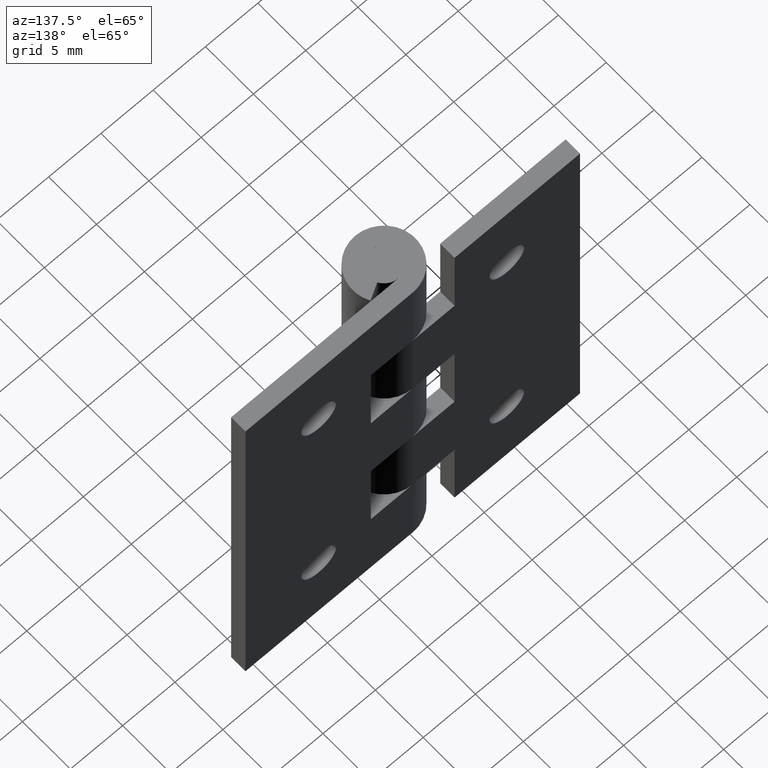
[diagram: clean part render]
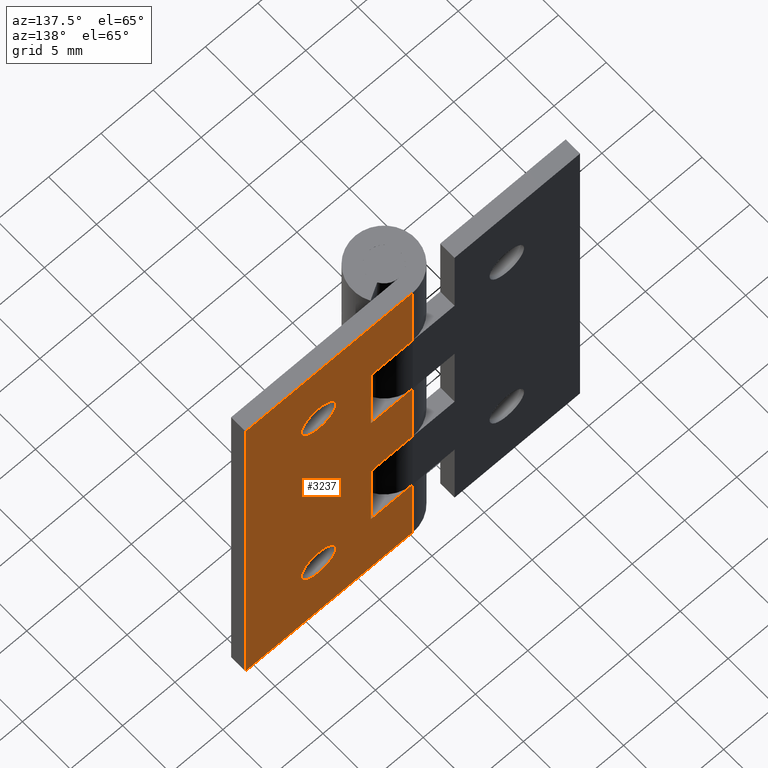
[diagram: same view with one face highlighted and labeled with its STEP entity id]
A machine part, auxiliary view. The second image highlights one B-rep face of the part: STEP entity #3237.
In plain terms, the highlighted face is a freeform B-spline surface patch.
Its self-contained STEP definition (entity closure, byte-faithful):
#1757=CARTESIAN_POINT('',(9.887453809187946,3.0,33.391016080625171));
#1758=VERTEX_POINT('',#1757);
#1764=CARTESIAN_POINT('',(9.0,3.0,30.350000000000001));
#1765=VERTEX_POINT('',#1764);
#1766=CARTESIAN_POINT('',(9.0,3.0,30.350000000000001));
#1767=CARTESIAN_POINT('',(10.650000000000000,3.0,30.350000000000001));
#1768=CARTESIAN_POINT('',(10.650000000000000,3.0,32.0));
#1769=CARTESIAN_POINT('',(10.650000000000002,3.000000000000000,32.904519532421645));
#1770=CARTESIAN_POINT('',(9.887453809187946,3.000000000000000,33.391016080625171));
#1778=(BOUNDED_CURVE()B_SPLINE_CURVE(2,(#1766,#1767,#1768,#1769,#1770),.UNSPECIFIED.,.F.,.U.)B_SPLINE_CURVE_WITH_KNOTS((3,2,3),(0.0,0.250000000000000,0.407950112627195),.UNSPECIFIED.)CURVE()GEOMETRIC_REPRESENTATION_ITEM()RATIONAL_B_SPLINE_CURVE((1.0,0.707106781186548,1.0,0.814949932402695,0.863729296954704))REPRESENTATION_ITEM(''));
#1779=EDGE_CURVE('',#1765,#1758,#1778,.T.);
#1781=CARTESIAN_POINT('',(7.355086399342391,3.0,32.129457507977023));
#1782=VERTEX_POINT('',#1781);
#1783=CARTESIAN_POINT('',(7.355086399342391,3.000000000000000,32.129457507977015));
#1784=CARTESIAN_POINT('',(7.350000000000000,3.000000000000000,32.064828676588860));
#1785=CARTESIAN_POINT('',(7.349999999999999,3.0,32.0));
#1786=CARTESIAN_POINT('',(7.349999999999999,3.0,30.350000000000001));
#1787=CARTESIAN_POINT('',(9.0,3.0,30.350000000000001));
#1795=(BOUNDED_CURVE()B_SPLINE_CURVE(2,(#1783,#1784,#1785,#1786,#1787),.UNSPECIFIED.,.F.,.U.)B_SPLINE_CURVE_WITH_KNOTS((3,2,3),(0.736331300627331,0.750000000000000,1.0),.UNSPECIFIED.)CURVE()GEOMETRIC_REPRESENTATION_ITEM()RATIONAL_B_SPLINE_CURVE((0.969723356160471,0.983986122574982,1.0,0.707106781186548,1.0))REPRESENTATION_ITEM(''));
#1796=EDGE_CURVE('',#1782,#1765,#1795,.T.);
#1900=CARTESIAN_POINT('',(9.0,3.0,33.649999999999999));
#1901=VERTEX_POINT('',#1900);
#1902=CARTESIAN_POINT('',(9.0,3.0,33.649999999999999));
#1903=CARTESIAN_POINT('',(7.474755688812476,3.000000000000000,33.650000000000006));
#1904=CARTESIAN_POINT('',(7.355086399342391,3.000000000000000,32.129457507977015));
#1912=(BOUNDED_CURVE()B_SPLINE_CURVE(2,(#1902,#1903,#1904),.UNSPECIFIED.,.F.,.U.)B_SPLINE_CURVE_WITH_KNOTS((3,3),(0.500000000000000,0.736331300627330),.UNSPECIFIED.)CURVE()GEOMETRIC_REPRESENTATION_ITEM()RATIONAL_B_SPLINE_CURVE((1.0,0.723120658611566,0.969723356160470))REPRESENTATION_ITEM(''));
#1913=EDGE_CURVE('',#1901,#1782,#1912,.T.);
#1915=CARTESIAN_POINT('',(9.887453809187946,3.000000000000000,33.391016080625171));
#1916=CARTESIAN_POINT('',(9.481516291377989,3.0,33.649999999999999));
#1917=CARTESIAN_POINT('',(9.0,3.0,33.649999999999999));
#1925=(BOUNDED_CURVE()B_SPLINE_CURVE(2,(#1915,#1916,#1917),.UNSPECIFIED.,.F.,.U.)B_SPLINE_CURVE_WITH_KNOTS((3,3),(0.407950112627195,0.500000000000000),.UNSPECIFIED.)CURVE()GEOMETRIC_REPRESENTATION_ITEM()RATIONAL_B_SPLINE_CURVE((0.863729296954704,0.892156848783853,1.0))REPRESENTATION_ITEM(''));
#1926=EDGE_CURVE('',#1758,#1901,#1925,.T.);
#2095=CARTESIAN_POINT('',(10.639224100503540,3.0,7.811733305313954));
#2096=VERTEX_POINT('',#2095);
#2102=CARTESIAN_POINT('',(9.0,3.0,6.350000000000000));
#2103=VERTEX_POINT('',#2102);
#2104=CARTESIAN_POINT('',(10.639224100503535,2.999999999999999,7.811733305313954));
#2105=CARTESIAN_POINT('',(10.471341879112853,3.000000000000000,6.350000000000001));
#2106=CARTESIAN_POINT('',(9.0,3.0,6.350000000000000));
#2114=(BOUNDED_CURVE()B_SPLINE_CURVE(2,(#2104,#2105,#2106),.UNSPECIFIED.,.F.,.U.)B_SPLINE_CURVE_WITH_KNOTS((3,3),(0.269767879325517,0.500000000000000),.UNSPECIFIED.)CURVE()GEOMETRIC_REPRESENTATION_ITEM()RATIONAL_B_SPLINE_CURVE((0.957343492945999,0.730266292405614,1.0))REPRESENTATION_ITEM(''));
#2115=EDGE_CURVE('',#2096,#2103,#2114,.T.);
#2117=CARTESIAN_POINT('',(7.353077582612187,3.0,7.899269909632302));
#2118=VERTEX_POINT('',#2117);
#2119=CARTESIAN_POINT('',(9.0,3.0,6.350000000000000));
#2120=CARTESIAN_POINT('',(7.447834989860880,3.000000000000001,6.350000000000000));
#2121=CARTESIAN_POINT('',(7.353077582612187,3.0,7.899269909632302));
#2129=(BOUNDED_CURVE()B_SPLINE_CURVE(2,(#2119,#2120,#2121),.UNSPECIFIED.,.F.,.U.)B_SPLINE_CURVE_WITH_KNOTS((3,3),(0.500000000000000,0.739332962213643),.UNSPECIFIED.)CURVE()GEOMETRIC_REPRESENTATION_ITEM()RATIONAL_B_SPLINE_CURVE((1.0,0.719603993316351,0.976072041612495))REPRESENTATION_ITEM(''));
#2130=EDGE_CURVE('',#2103,#2118,#2129,.T.);
#2225=CARTESIAN_POINT('',(9.0,3.0,9.650000000000000));
#2226=VERTEX_POINT('',#2225);
#2227=CARTESIAN_POINT('',(7.353077582612187,3.0,7.899269909632302));
#2228=CARTESIAN_POINT('',(7.350000000000000,3.000000000000000,7.949587940421766));
#2229=CARTESIAN_POINT('',(7.349999999999999,3.0,8.0));
#2230=CARTESIAN_POINT('',(7.349999999999999,3.0,9.650000000000000));
#2231=CARTESIAN_POINT('',(9.0,3.0,9.650000000000000));
#2239=(BOUNDED_CURVE()B_SPLINE_CURVE(2,(#2227,#2228,#2229,#2230,#2231),.UNSPECIFIED.,.F.,.U.)B_SPLINE_CURVE_WITH_KNOTS((3,2,3),(0.739332962213642,0.750000000000000,1.0),.UNSPECIFIED.)CURVE()GEOMETRIC_REPRESENTATION_ITEM()RATIONAL_B_SPLINE_CURVE((0.976072041612494,0.987502787870196,1.0,0.707106781186548,1.0))REPRESENTATION_ITEM(''));
#2240=EDGE_CURVE('',#2118,#2226,#2239,.T.);
#2242=CARTESIAN_POINT('',(9.0,3.0,9.650000000000000));
#2243=CARTESIAN_POINT('',(10.650000000000000,3.0,9.650000000000000));
#2244=CARTESIAN_POINT('',(10.650000000000000,3.0,8.0));
#2245=CARTESIAN_POINT('',(10.650000000000006,3.000000000000000,7.905557958442033));
#2246=CARTESIAN_POINT('',(10.639224100503535,2.999999999999999,7.811733305313954));
#2254=(BOUNDED_CURVE()B_SPLINE_CURVE(2,(#2242,#2243,#2244,#2245,#2246),.UNSPECIFIED.,.F.,.U.)B_SPLINE_CURVE_WITH_KNOTS((3,2,3),(0.0,0.250000000000000,0.269767879325517),.UNSPECIFIED.)CURVE()GEOMETRIC_REPRESENTATION_ITEM()RATIONAL_B_SPLINE_CURVE((1.0,0.707106781186548,1.0,0.976840488780934,0.957343492945999))REPRESENTATION_ITEM(''));
#2255=EDGE_CURVE('',#2226,#2096,#2254,.T.);
#2393=CARTESIAN_POINT('',(0.0,3.0,32.0));
#2394=VERTEX_POINT('',#2393);
#2395=CARTESIAN_POINT('',(4.0,3.0,32.0));
#2396=VERTEX_POINT('',#2395);
#2397=CARTESIAN_POINT('',(0.0,3.0,32.0));
#2398=CARTESIAN_POINT('',(4.0,3.0,32.0));
#2399=QUASI_UNIFORM_CURVE('',1,(#2397,#2398),.UNSPECIFIED.,.F.,.U.);
#2400=EDGE_CURVE('',#2394,#2396,#2399,.T.);
#2473=CARTESIAN_POINT('',(0.0,3.0,24.0));
#2474=VERTEX_POINT('',#2473);
#2529=CARTESIAN_POINT('',(4.0,3.0,24.0));
#2530=VERTEX_POINT('',#2529);
#2536=CARTESIAN_POINT('',(4.0,3.0,24.0));
#2537=CARTESIAN_POINT('',(0.0,3.0,24.0));
#2538=QUASI_UNIFORM_CURVE('',1,(#2536,#2537),.UNSPECIFIED.,.F.,.U.);
#2539=EDGE_CURVE('',#2530,#2474,#2538,.T.);
#2550=CARTESIAN_POINT('',(4.0,3.0,32.0));
#2551=CARTESIAN_POINT('',(4.0,3.0,24.0));
#2552=QUASI_UNIFORM_CURVE('',1,(#2550,#2551),.UNSPECIFIED.,.F.,.U.);
#2553=EDGE_CURVE('',#2396,#2530,#2552,.T.);
#2571=CARTESIAN_POINT('',(0.0,3.0,8.0));
#2572=VERTEX_POINT('',#2571);
#2627=CARTESIAN_POINT('',(4.0,3.0,8.0));
#2628=VERTEX_POINT('',#2627);
#2634=CARTESIAN_POINT('',(4.0,3.0,8.0));
#2635=CARTESIAN_POINT('',(0.0,3.0,8.0));
#2636=QUASI_UNIFORM_CURVE('',1,(#2634,#2635),.UNSPECIFIED.,.F.,.U.);
#2637=EDGE_CURVE('',#2628,#2572,#2636,.T.);
#2647=CARTESIAN_POINT('',(0.0,3.0,16.0));
#2648=VERTEX_POINT('',#2647);
#2649=CARTESIAN_POINT('',(4.0,3.0,16.0));
#2650=VERTEX_POINT('',#2649);
#2651=CARTESIAN_POINT('',(0.0,3.0,16.0));
#2652=CARTESIAN_POINT('',(4.0,3.0,16.0));
#2653=QUASI_UNIFORM_CURVE('',1,(#2651,#2652),.UNSPECIFIED.,.F.,.U.);
#2654=EDGE_CURVE('',#2648,#2650,#2653,.T.);
#2726=CARTESIAN_POINT('',(4.0,3.0,16.0));
#2727=CARTESIAN_POINT('',(4.0,3.0,8.0));
#2728=QUASI_UNIFORM_CURVE('',1,(#2726,#2727),.UNSPECIFIED.,.F.,.U.);
#2729=EDGE_CURVE('',#2650,#2628,#2728,.T.);
#2747=CARTESIAN_POINT('',(0.0,3.0,40.0));
#2748=VERTEX_POINT('',#2747);
#2803=CARTESIAN_POINT('',(16.0,3.0,40.0));
#2804=VERTEX_POINT('',#2803);
#2810=CARTESIAN_POINT('',(0.0,3.0,40.0));
#2811=CARTESIAN_POINT('',(16.0,3.0,40.0));
#2812=QUASI_UNIFORM_CURVE('',1,(#2810,#2811),.UNSPECIFIED.,.F.,.U.);
#2813=EDGE_CURVE('',#2748,#2804,#2812,.T.);
#2825=CARTESIAN_POINT('',(0.0,3.0,0.0));
#2826=VERTEX_POINT('',#2825);
#2846=CARTESIAN_POINT('',(16.0,3.0,0.0));
#2847=VERTEX_POINT('',#2846);
#2848=CARTESIAN_POINT('',(0.0,3.0,0.0));
#2849=CARTESIAN_POINT('',(16.0,3.0,0.0));
#2850=QUASI_UNIFORM_CURVE('',1,(#2848,#2849),.UNSPECIFIED.,.F.,.U.);
#2851=EDGE_CURVE('',#2826,#2847,#2850,.T.);
#2961=CARTESIAN_POINT('',(16.0,3.0,0.0));
#2962=CARTESIAN_POINT('',(16.0,3.0,40.0));
#2963=QUASI_UNIFORM_CURVE('',1,(#2961,#2962),.UNSPECIFIED.,.F.,.U.);
#2964=EDGE_CURVE('',#2847,#2804,#2963,.T.);
#2997=CARTESIAN_POINT('',(0.0,3.0,16.0));
#2998=CARTESIAN_POINT('',(0.0,3.0,24.0));
#2999=QUASI_UNIFORM_CURVE('',1,(#2997,#2998),.UNSPECIFIED.,.F.,.U.);
#3000=EDGE_CURVE('',#2648,#2474,#2999,.T.);
#3083=CARTESIAN_POINT('',(0.0,3.0,0.0));
#3084=CARTESIAN_POINT('',(0.0,3.0,8.0));
#3085=QUASI_UNIFORM_CURVE('',1,(#3083,#3084),.UNSPECIFIED.,.F.,.U.);
#3086=EDGE_CURVE('',#2826,#2572,#3085,.T.);
#3114=CARTESIAN_POINT('',(0.0,3.0,32.0));
#3115=CARTESIAN_POINT('',(0.0,3.0,40.0));
#3116=QUASI_UNIFORM_CURVE('',1,(#3114,#3115),.UNSPECIFIED.,.F.,.U.);
#3117=EDGE_CURVE('',#2394,#2748,#3116,.T.);
#3206=CARTESIAN_POINT('',(-0.799199968988895,3.0,41.997999922472239));
#3207=CARTESIAN_POINT('',(-0.799199968988895,3.0,-1.998000995355844));
#3208=CARTESIAN_POINT('',(16.799200398142339,3.0,41.997999922472239));
#3209=CARTESIAN_POINT('',(16.799200398142339,3.0,-1.998000995355844));
#3210=B_SPLINE_SURFACE_WITH_KNOTS('',1,1,((#3206,#3208),(#3207,#3209)),.UNSPECIFIED.,.F.,.F.,.U.,(2,2),(2,2),(0.0,43.996000917828077),(0.0,17.598400367131230),.UNSPECIFIED.);
#3211=ORIENTED_EDGE('',*,*,#3000,.T.);
#3212=ORIENTED_EDGE('',*,*,#2539,.F.);
#3213=ORIENTED_EDGE('',*,*,#2553,.F.);
#3214=ORIENTED_EDGE('',*,*,#2400,.F.);
#3215=ORIENTED_EDGE('',*,*,#3117,.T.);
#3216=ORIENTED_EDGE('',*,*,#2813,.T.);
#3217=ORIENTED_EDGE('',*,*,#2964,.F.);
#3218=ORIENTED_EDGE('',*,*,#2851,.F.);
#3219=ORIENTED_EDGE('',*,*,#3086,.T.);
#3220=ORIENTED_EDGE('',*,*,#2637,.F.);
#3221=ORIENTED_EDGE('',*,*,#2729,.F.);
#3222=ORIENTED_EDGE('',*,*,#2654,.F.);
#3223=EDGE_LOOP('',(#3211,#3212,#3213,#3214,#3215,#3216,#3217,#3218,#3219,#3220,#3221,#3222));
#3224=FACE_OUTER_BOUND('',#3223,.T.);
#3225=ORIENTED_EDGE('',*,*,#2130,.F.);
#3226=ORIENTED_EDGE('',*,*,#2115,.F.);
#3227=ORIENTED_EDGE('',*,*,#2255,.F.);
#3228=ORIENTED_EDGE('',*,*,#2240,.F.);
#3229=EDGE_LOOP('',(#3225,#3226,#3227,#3228));
#3230=FACE_BOUND('',#3229,.T.);
#3231=ORIENTED_EDGE('',*,*,#1913,.T.);
#3232=ORIENTED_EDGE('',*,*,#1796,.T.);
#3233=ORIENTED_EDGE('',*,*,#1779,.T.);
#3234=ORIENTED_EDGE('',*,*,#1926,.T.);
#3235=EDGE_LOOP('',(#3231,#3232,#3233,#3234));
#3236=FACE_BOUND('',#3235,.T.);
#3237=ADVANCED_FACE('',(#3224,#3230,#3236),#3210,.F.);